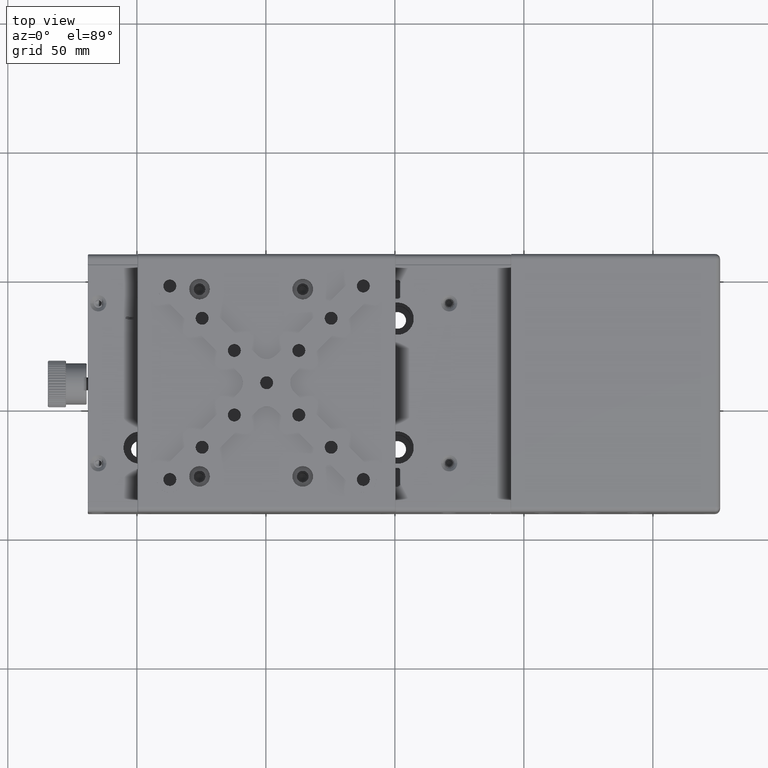
[diagram: clean part render]
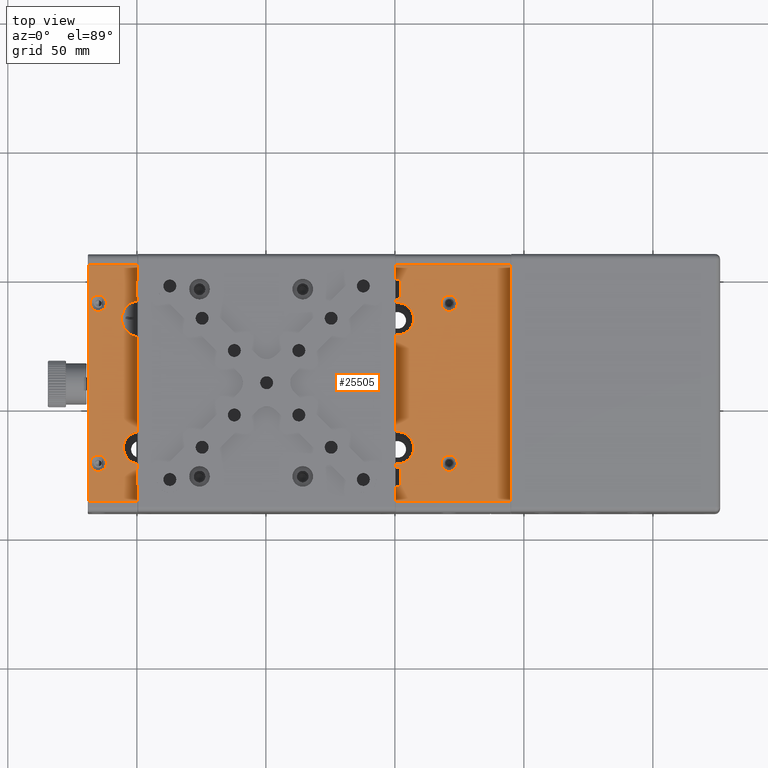
[diagram: same view with one face highlighted and labeled with its STEP entity id]
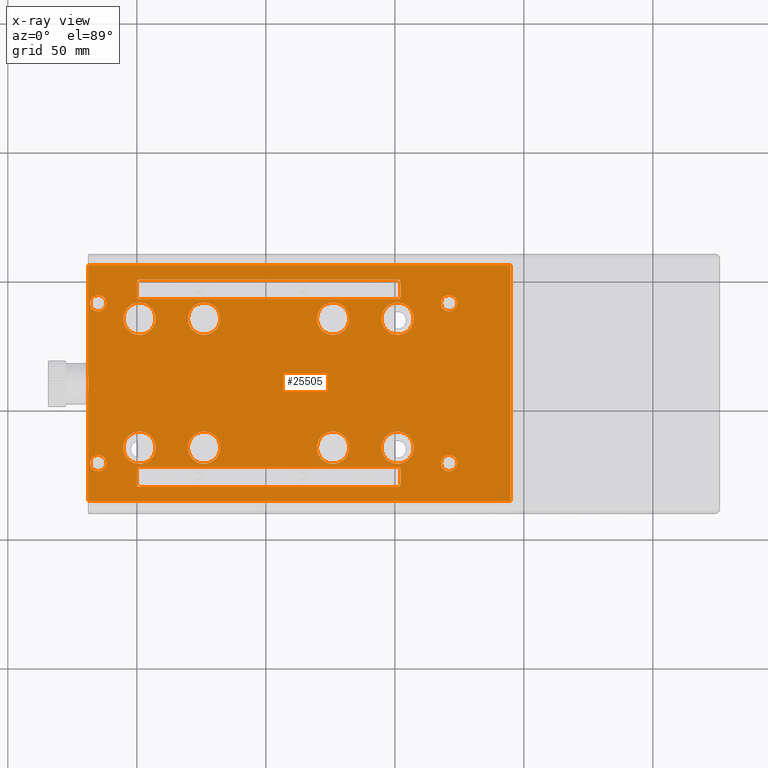
[diagram: x-ray of the same camera — body ghosted, the highlighted face saturated]
A machine part, top view. The second image highlights one B-rep face of the part: STEP entity #25505.
The next image is the same camera in x-ray: the body ghosted, the highlighted face saturated — about 0% of this face is hidden behind the body in this view.
In plain terms, the highlighted planar face has unit normal (0, 0, 1).
Its self-contained STEP definition (entity closure, byte-faithful):
#201 = DIRECTION ( 'NONE',  ( 0.000000000000000000, 0.000000000000000000, -1.000000000000000000 ) ) ;
#372 = DIRECTION ( 'NONE',  ( 1.000000000000000000, 0.000000000000000000, 0.000000000000000000 ) ) ;
#603 = DIRECTION ( 'NONE',  ( 0.000000000000000000, 0.000000000000000000, 1.000000000000000000 ) ) ;
#1005 = CARTESIAN_POINT ( 'NONE',  ( -73.96079120029010312, -15.00575141257545120, 36.50000000000000000 ) ) ;
#1494 = ORIENTED_EDGE ( 'NONE', *, *, #55256, .F. ) ;
#1911 = CARTESIAN_POINT ( 'NONE',  ( -150.1607912002899923, -29.00575141257545297, 36.50000000000000000 ) ) ;
#2404 = EDGE_CURVE ( 'NONE', #35365, #9670, #32947, .T. ) ;
#2948 = CIRCLE ( 'NONE', #56689, 3.149999999999999911 ) ;
#3013 = VERTEX_POINT ( 'NONE', #66327 ) ;
#3133 = DIRECTION ( 'NONE',  ( 0.000000000000000000, 0.000000000000000000, 1.000000000000000000 ) ) ;
#3363 = FACE_BOUND ( 'NONE', #20935, .T. ) ;
#3528 = VERTEX_POINT ( 'NONE', #65880 ) ;
#3534 = ORIENTED_EDGE ( 'NONE', *, *, #41924, .F. ) ;
#3535 = EDGE_CURVE ( 'NONE', #28929, #59703, #60400, .T. ) ;
#3977 = DIRECTION ( 'NONE',  ( 1.000000000000000000, 0.000000000000000000, 0.000000000000000000 ) ) ;
#4519 = ORIENTED_EDGE ( 'NONE', *, *, #27572, .T. ) ;
#4668 = EDGE_CURVE ( 'NONE', #32475, #6495, #54761, .T. ) ;
#4693 = EDGE_CURVE ( 'NONE', #27872, #35365, #6500, .T. ) ;
#4795 = CIRCLE ( 'NONE', #37541, 1.200000000000034373 ) ;
#5108 = CARTESIAN_POINT ( 'NONE',  ( -5.160791200290169911, 55.99424858742450084, 36.50000000000000000 ) ) ;
#5128 = EDGE_CURVE ( 'NONE', #59703, #68340, #56039, .T. ) ;
#5157 = ORIENTED_EDGE ( 'NONE', *, *, #2404, .T. ) ;
#5561 = CARTESIAN_POINT ( 'NONE',  ( -130.2107912002900036, 34.99424858742454347, 36.50000000000000000 ) ) ;
#6196 = DIRECTION ( 'NONE',  ( -1.000000000000000000, 0.000000000000000000, 0.000000000000000000 ) ) ;
#6396 = CARTESIAN_POINT ( 'NONE',  ( -148.9607912002899752, -15.00575141257545120, 36.50000000000000000 ) ) ;
#6495 = VERTEX_POINT ( 'NONE', #43184 ) ;
#6500 = LINE ( 'NONE', #67620, #50128 ) ;
#6969 = VERTEX_POINT ( 'NONE', #20821 ) ;
#7342 = VERTEX_POINT ( 'NONE', #54008 ) ;
#7973 = VERTEX_POINT ( 'NONE', #24901 ) ;
#8049 = EDGE_CURVE ( 'NONE', #32002, #29829, #53815, .T. ) ;
#8247 = DIRECTION ( 'NONE',  ( 0.000000000000000000, 0.000000000000000000, -1.000000000000000000 ) ) ;
#8370 = VERTEX_POINT ( 'NONE', #19680 ) ;
#8612 = AXIS2_PLACEMENT_3D ( 'NONE', #65610, #30884, #14760 ) ;
#8882 = FACE_BOUND ( 'NONE', #45761, .T. ) ;
#8927 = ORIENTED_EDGE ( 'NONE', *, *, #36085, .T. ) ;
#8947 = DIRECTION ( 'NONE',  ( 1.000000000000000000, 0.000000000000000000, 0.000000000000000000 ) ) ;
#9351 = CARTESIAN_POINT ( 'NONE',  ( -48.96079120029010312, 34.99424858742454347, 36.50000000000000000 ) ) ;
#9379 = AXIS2_PLACEMENT_3D ( 'NONE', #63382, #68863, #41040 ) ;
#9438 = CIRCLE ( 'NONE', #18814, 6.250000000000005329 ) ;
#9505 = CARTESIAN_POINT ( 'NONE',  ( -28.96079120029009957, 40.99424858742454347, 36.50000000000000000 ) ) ;
#9670 = VERTEX_POINT ( 'NONE', #41222 ) ;
#9725 = VERTEX_POINT ( 'NONE', #64628 ) ;
#9783 = VERTEX_POINT ( 'NONE', #37883 ) ;
#9951 = FACE_BOUND ( 'NONE', #61414, .T. ) ;
#10058 = DIRECTION ( 'NONE',  ( 0.000000000000000000, 0.000000000000000000, 1.000000000000000000 ) ) ;
#10266 = CARTESIAN_POINT ( 'NONE',  ( -150.1607912002899923, 48.99424858742449373, 36.50000000000000000 ) ) ;
#10318 = AXIS2_PLACEMENT_3D ( 'NONE', #68143, #49952, #62276 ) ;
#10456 = DIRECTION ( 'NONE',  ( 0.000000000000000000, 0.000000000000000000, -1.000000000000000000 ) ) ;
#10772 = EDGE_CURVE ( 'NONE', #66914, #7342, #26291, .T. ) ;
#10789 = VECTOR ( 'NONE', #26957, 1000.000000000000000 ) ;
#11305 = CARTESIAN_POINT ( 'NONE',  ( -47.76079120029010028, 48.99424858742449373, 36.50000000000000000 ) ) ;
#11404 = VERTEX_POINT ( 'NONE', #26145 ) ;
#11510 = CARTESIAN_POINT ( 'NONE',  ( -25.81079120029010099, 40.99424858742454347, 36.50000000000000000 ) ) ;
#11717 = AXIS2_PLACEMENT_3D ( 'NONE', #9505, #47924, #37280 ) ;
#11984 = ORIENTED_EDGE ( 'NONE', *, *, #4693, .T. ) ;
#12014 = ORIENTED_EDGE ( 'NONE', *, *, #39501, .F. ) ;
#12564 = VERTEX_POINT ( 'NONE', #69804 ) ;
#12720 = VECTOR ( 'NONE', #56692, 1000.000000000000000 ) ;
#13152 = LINE ( 'NONE', #46068, #12720 ) ;
#13275 = VERTEX_POINT ( 'NONE', #44288 ) ;
#13311 = CARTESIAN_POINT ( 'NONE',  ( -117.7107912002900036, -15.00575141257545120, 36.50000000000000000 ) ) ;
#13738 = VERTEX_POINT ( 'NONE', #56902 ) ;
#14067 = AXIS2_PLACEMENT_3D ( 'NONE', #50729, #603, #29856 ) ;
#14355 = DIRECTION ( 'NONE',  ( 0.000000000000000000, 0.000000000000000000, 1.000000000000000000 ) ) ;
#14362 = FACE_BOUND ( 'NONE', #38569, .T. ) ;
#14751 = DIRECTION ( 'NONE',  ( -1.000000000000000000, 0.000000000000000000, 0.000000000000000000 ) ) ;
#14760 = DIRECTION ( 'NONE',  ( 1.000000000000000000, 0.000000000000000000, 0.000000000000000000 ) ) ;
#15326 = AXIS2_PLACEMENT_3D ( 'NONE', #34139, #56451, #29019 ) ;
#15403 = LINE ( 'NONE', #21993, #24716 ) ;
#15430 = FACE_BOUND ( 'NONE', #27694, .T. ) ;
#15646 = DIRECTION ( 'NONE',  ( 1.000000000000000000, 0.000000000000000000, 0.000000000000000000 ) ) ;
#15786 = FACE_OUTER_BOUND ( 'NONE', #18335, .T. ) ;
#16118 = DIRECTION ( 'NONE',  ( 0.000000000000000000, 0.000000000000000000, 1.000000000000000000 ) ) ;
#16615 = CARTESIAN_POINT ( 'NONE',  ( -168.7607912002899866, -35.80575141257544658, 36.50000000000000000 ) ) ;
#17018 = EDGE_CURVE ( 'NONE', #32937, #3013, #2948, .T. ) ;
#17698 = ORIENTED_EDGE ( 'NONE', *, *, #63912, .F. ) ;
#17718 = EDGE_CURVE ( 'NONE', #24325, #70727, #47080, .T. ) ;
#17730 = VECTOR ( 'NONE', #46347, 1000.000000000000000 ) ;
#17826 = ORIENTED_EDGE ( 'NONE', *, *, #18955, .F. ) ;
#18335 = EDGE_LOOP ( 'NONE', ( #11984, #5157, #47474, #46944 ) ) ;
#18493 = CIRCLE ( 'NONE', #10318, 6.249999999999998224 ) ;
#18609 = AXIS2_PLACEMENT_3D ( 'NONE', #21191, #36914, #43492 ) ;
#18814 = AXIS2_PLACEMENT_3D ( 'NONE', #66814, #29109, #33854 ) ;
#18955 = EDGE_CURVE ( 'NONE', #7973, #8370, #53437, .T. ) ;
#19248 = ORIENTED_EDGE ( 'NONE', *, *, #57368, .T. ) ;
#19680 = CARTESIAN_POINT ( 'NONE',  ( -67.71079120029010312, 34.99424858742454347, 36.50000000000000000 ) ) ;
#19688 = CARTESIAN_POINT ( 'NONE',  ( -123.9607912002900036, 34.99424858742454347, 36.50000000000000000 ) ) ;
#19792 = VECTOR ( 'NONE', #6196, 1000.000000000000000 ) ;
#19812 = DIRECTION ( 'NONE',  ( 1.000000000000000000, 0.000000000000000000, 0.000000000000000000 ) ) ;
#20321 = DIRECTION ( 'NONE',  ( 0.000000000000000000, 0.000000000000000000, 1.000000000000000000 ) ) ;
#20680 = DIRECTION ( 'NONE',  ( 1.000000000000000000, 0.000000000000000000, 0.000000000000000000 ) ) ;
#20777 = DIRECTION ( 'NONE',  ( 1.000000000000000000, 0.000000000000000000, 0.000000000000000000 ) ) ;
#20821 = CARTESIAN_POINT ( 'NONE',  ( -148.9607912002899752, -22.60575141257539755, 36.50000000000000000 ) ) ;
#20929 = FACE_BOUND ( 'NONE', #23445, .T. ) ;
#20935 = EDGE_LOOP ( 'NONE', ( #71804, #62931 ) ) ;
#21191 = CARTESIAN_POINT ( 'NONE',  ( -48.96079120029010312, 34.99424858742454347, 36.50000000000000000 ) ) ;
#21304 = FACE_BOUND ( 'NONE', #40620, .T. ) ;
#21344 = LINE ( 'NONE', #49121, #27910 ) ;
#21659 = PLANE ( 'NONE',  #55060 ) ;
#21993 = CARTESIAN_POINT ( 'NONE',  ( -168.7607912002899866, -36.00575141257544942, 36.50000000000000000 ) ) ;
#22111 = EDGE_CURVE ( 'NONE', #13738, #11404, #63281, .T. ) ;
#22137 = EDGE_CURVE ( 'NONE', #69060, #40625, #13152, .T. ) ;
#22143 = AXIS2_PLACEMENT_3D ( 'NONE', #31975, #42931, #8947 ) ;
#22272 = VERTEX_POINT ( 'NONE', #25230 ) ;
#22687 = CARTESIAN_POINT ( 'NONE',  ( -80.21079120029010312, -15.00575141257545120, 36.50000000000000000 ) ) ;
#22784 = EDGE_CURVE ( 'NONE', #68340, #32002, #59485, .T. ) ;
#22837 = CARTESIAN_POINT ( 'NONE',  ( -48.96079120029010312, -22.60575141257539755, 36.50000000000000000 ) ) ;
#23010 = EDGE_CURVE ( 'NONE', #25739, #23578, #53698, .T. ) ;
#23420 = CARTESIAN_POINT ( 'NONE',  ( -42.71079120029010312, -15.00575141257545120, 36.50000000000000000 ) ) ;
#23445 = EDGE_LOOP ( 'NONE', ( #24898, #17826 ) ) ;
#23483 = EDGE_CURVE ( 'NONE', #70937, #57108, #54957, .T. ) ;
#23578 = VERTEX_POINT ( 'NONE', #29707 ) ;
#24183 = EDGE_CURVE ( 'NONE', #3528, #69725, #44589, .T. ) ;
#24325 = VERTEX_POINT ( 'NONE', #35936 ) ;
#24469 = EDGE_CURVE ( 'NONE', #69725, #3528, #59838, .T. ) ;
#24716 = VECTOR ( 'NONE', #37338, 1000.000000000000000 ) ;
#24873 = DIRECTION ( 'NONE',  ( 0.000000000000000000, 0.000000000000000000, -1.000000000000000000 ) ) ;
#24898 = ORIENTED_EDGE ( 'NONE', *, *, #61783, .F. ) ;
#24901 = CARTESIAN_POINT ( 'NONE',  ( -80.21079120029010312, 34.99424858742454347, 36.50000000000000000 ) ) ;
#25230 = CARTESIAN_POINT ( 'NONE',  ( -168.7607912002899866, 55.79424858742449800, 36.50000000000000000 ) ) ;
#25505 = ADVANCED_FACE ( 'NONE', ( #26437, #48718, #60067, #20929, #26778, #9951, #49078, #3363, #8882, #43224, #15430, #14362, #21304, #71768, #15786 ), #21659, .T. ) ;
#25670 = DIRECTION ( 'NONE',  ( 0.000000000000000000, 1.000000000000000000, 0.000000000000000000 ) ) ;
#25739 = VERTEX_POINT ( 'NONE', #25993 ) ;
#25979 = DIRECTION ( 'NONE',  ( 0.000000000000000000, 0.000000000000000000, -1.000000000000000000 ) ) ;
#25993 = CARTESIAN_POINT ( 'NONE',  ( -32.11079120029010170, -21.00575141257544942, 36.50000000000000000 ) ) ;
#26145 = CARTESIAN_POINT ( 'NONE',  ( -148.9607912002899752, -30.20575141257550200, 36.50000000000000000 ) ) ;
#26189 = EDGE_LOOP ( 'NONE', ( #67273, #61503 ) ) ;
#26291 = CIRCLE ( 'NONE', #46110, 6.250000000000005329 ) ;
#26437 = FACE_BOUND ( 'NONE', #49808, .T. ) ;
#26621 = DIRECTION ( 'NONE',  ( 0.000000000000000000, 0.000000000000000000, 1.000000000000000000 ) ) ;
#26675 = CARTESIAN_POINT ( 'NONE',  ( -48.96079120029010312, 48.99424858742449373, 36.50000000000000000 ) ) ;
#26778 = FACE_BOUND ( 'NONE', #37364, .T. ) ;
#26931 = ORIENTED_EDGE ( 'NONE', *, *, #29086, .F. ) ;
#26957 = DIRECTION ( 'NONE',  ( -1.000000000000000000, 3.401418580346679586E-17, 0.000000000000000000 ) ) ;
#27007 = CARTESIAN_POINT ( 'NONE',  ( -123.9607912002900036, -15.00575141257545120, 36.50000000000000000 ) ) ;
#27008 = DIRECTION ( 'NONE',  ( 1.000000000000000000, 0.000000000000000000, 0.000000000000000000 ) ) ;
#27055 = ORIENTED_EDGE ( 'NONE', *, *, #34217, .F. ) ;
#27482 = EDGE_CURVE ( 'NONE', #6969, #27789, #55906, .T. ) ;
#27516 = CIRCLE ( 'NONE', #33345, 6.250000000000005329 ) ;
#27572 = EDGE_CURVE ( 'NONE', #27789, #24325, #60673, .T. ) ;
#27694 = EDGE_LOOP ( 'NONE', ( #34953, #30929 ) ) ;
#27789 = VERTEX_POINT ( 'NONE', #22837 ) ;
#27872 = VERTEX_POINT ( 'NONE', #16615 ) ;
#27910 = VECTOR ( 'NONE', #14751, 1000.000000000000000 ) ;
#28490 = EDGE_CURVE ( 'NONE', #3013, #32937, #49118, .T. ) ;
#28678 = ORIENTED_EDGE ( 'NONE', *, *, #3535, .T. ) ;
#28866 = ORIENTED_EDGE ( 'NONE', *, *, #28490, .F. ) ;
#28929 = VERTEX_POINT ( 'NONE', #58469 ) ;
#29019 = DIRECTION ( 'NONE',  ( 1.000000000000000000, 0.000000000000000000, 0.000000000000000000 ) ) ;
#29086 = EDGE_CURVE ( 'NONE', #9783, #43953, #65579, .T. ) ;
#29109 = DIRECTION ( 'NONE',  ( 0.000000000000000000, 0.000000000000000000, 1.000000000000000000 ) ) ;
#29136 = AXIS2_PLACEMENT_3D ( 'NONE', #39079, #8247, #29839 ) ;
#29707 = CARTESIAN_POINT ( 'NONE',  ( -25.81079120029010099, -21.00575141257544942, 36.50000000000000000 ) ) ;
#29829 = VERTEX_POINT ( 'NONE', #11305 ) ;
#29839 = DIRECTION ( 'NONE',  ( 1.000000000000000000, 0.000000000000000000, 0.000000000000000000 ) ) ;
#29856 = DIRECTION ( 'NONE',  ( 1.000000000000000000, 0.000000000000000000, 0.000000000000000000 ) ) ;
#30512 = DIRECTION ( 'NONE',  ( 0.000000000000000000, 0.000000000000000000, 1.000000000000000000 ) ) ;
#30649 = CIRCLE ( 'NONE', #58691, 3.149999999999986144 ) ;
#30805 = CIRCLE ( 'NONE', #8612, 1.200000000000034373 ) ;
#30874 = DIRECTION ( 'NONE',  ( 1.000000000000000000, 0.000000000000000000, 0.000000000000000000 ) ) ;
#30884 = DIRECTION ( 'NONE',  ( 0.000000000000000000, 0.000000000000000000, -1.000000000000000000 ) ) ;
#30929 = ORIENTED_EDGE ( 'NONE', *, *, #62212, .F. ) ;
#30930 = VERTEX_POINT ( 'NONE', #61543 ) ;
#31055 = CARTESIAN_POINT ( 'NONE',  ( -148.9607912002899752, -23.80575141257545013, 36.50000000000000000 ) ) ;
#31147 = DIRECTION ( 'NONE',  ( 0.000000000000000000, 0.000000000000000000, -1.000000000000000000 ) ) ;
#31388 = DIRECTION ( 'NONE',  ( 0.000000000000000000, 0.000000000000000000, -1.000000000000000000 ) ) ;
#31975 = CARTESIAN_POINT ( 'NONE',  ( -48.96079120029010312, -15.00575141257545120, 36.50000000000000000 ) ) ;
#32002 = VERTEX_POINT ( 'NONE', #40571 ) ;
#32221 = EDGE_CURVE ( 'NONE', #40625, #6969, #59578, .T. ) ;
#32475 = VERTEX_POINT ( 'NONE', #51116 ) ;
#32937 = VERTEX_POINT ( 'NONE', #11510 ) ;
#32947 = LINE ( 'NONE', #5108, #63857 ) ;
#33000 = EDGE_LOOP ( 'NONE', ( #65639, #47473 ) ) ;
#33156 = CARTESIAN_POINT ( 'NONE',  ( -48.96079120029010312, 42.59424858742450226, 36.50000000000000000 ) ) ;
#33345 = AXIS2_PLACEMENT_3D ( 'NONE', #27007, #48928, #15646 ) ;
#33470 = ORIENTED_EDGE ( 'NONE', *, *, #44484, .F. ) ;
#33609 = CARTESIAN_POINT ( 'NONE',  ( -48.96079120029010312, -22.60575141257539755, 36.50000000000000000 ) ) ;
#33854 = DIRECTION ( 'NONE',  ( 1.000000000000000000, 0.000000000000000000, 0.000000000000000000 ) ) ;
#34032 = EDGE_CURVE ( 'NONE', #47893, #36188, #71267, .T. ) ;
#34139 = CARTESIAN_POINT ( 'NONE',  ( -148.9607912002899752, 34.99424858742454347, 36.50000000000000000 ) ) ;
#34217 = EDGE_CURVE ( 'NONE', #61697, #12564, #52565, .T. ) ;
#34664 = CARTESIAN_POINT ( 'NONE',  ( -73.96079120029010312, 34.99424858742454347, 36.50000000000000000 ) ) ;
#34818 = EDGE_CURVE ( 'NONE', #22272, #27872, #15403, .T. ) ;
#34953 = ORIENTED_EDGE ( 'NONE', *, *, #23483, .F. ) ;
#35023 = AXIS2_PLACEMENT_3D ( 'NONE', #31055, #24873, #54071 ) ;
#35167 = CARTESIAN_POINT ( 'NONE',  ( -117.7107912002900036, 34.99424858742454347, 36.50000000000000000 ) ) ;
#35365 = VERTEX_POINT ( 'NONE', #45110 ) ;
#35454 = CARTESIAN_POINT ( 'NONE',  ( -148.9607912002899752, -30.20575141257550200, 36.50000000000000000 ) ) ;
#35936 = CARTESIAN_POINT ( 'NONE',  ( -47.76079120029010028, -23.80575141257545013, 36.50000000000000000 ) ) ;
#36085 = EDGE_CURVE ( 'NONE', #36188, #52801, #48529, .T. ) ;
#36188 = VERTEX_POINT ( 'NONE', #33156 ) ;
#36248 = CIRCLE ( 'NONE', #14067, 6.250000000000005329 ) ;
#36806 = DIRECTION ( 'NONE',  ( 0.000000000000000000, -1.000000000000000000, 0.000000000000000000 ) ) ;
#36914 = DIRECTION ( 'NONE',  ( 0.000000000000000000, 0.000000000000000000, 1.000000000000000000 ) ) ;
#37000 = VERTEX_POINT ( 'NONE', #67716 ) ;
#37280 = DIRECTION ( 'NONE',  ( 1.000000000000000000, 0.000000000000000000, 0.000000000000000000 ) ) ;
#37338 = DIRECTION ( 'NONE',  ( 1.224646799147353947E-16, -1.000000000000000000, 0.000000000000000000 ) ) ;
#37364 = EDGE_LOOP ( 'NONE', ( #64743, #55892 ) ) ;
#37404 = AXIS2_PLACEMENT_3D ( 'NONE', #6396, #41146, #56886 ) ;
#37541 = AXIS2_PLACEMENT_3D ( 'NONE', #46884, #31147, #19812 ) ;
#37867 = DIRECTION ( 'NONE',  ( 1.000000000000000000, 0.000000000000000000, 0.000000000000000000 ) ) ;
#37883 = CARTESIAN_POINT ( 'NONE',  ( -168.1107912002899809, 40.99424858742454347, 36.50000000000000000 ) ) ;
#38569 = EDGE_LOOP ( 'NONE', ( #17698, #48701 ) ) ;
#38709 = DIRECTION ( 'NONE',  ( 1.000000000000000000, 0.000000000000000000, 0.000000000000000000 ) ) ;
#38787 = CARTESIAN_POINT ( 'NONE',  ( -73.96079120029010312, 34.99424858742454347, 36.50000000000000000 ) ) ;
#39079 = CARTESIAN_POINT ( 'NONE',  ( -48.96079120029010312, -23.80575141257545013, 36.50000000000000000 ) ) ;
#39431 = AXIS2_PLACEMENT_3D ( 'NONE', #38787, #62574, #372 ) ;
#39469 = CARTESIAN_POINT ( 'NONE',  ( -148.9607912002899752, 42.59424858742454489, 36.50000000000000000 ) ) ;
#39501 = EDGE_CURVE ( 'NONE', #37000, #61271, #18493, .T. ) ;
#39530 = ORIENTED_EDGE ( 'NONE', *, *, #17018, .F. ) ;
#39699 = AXIS2_PLACEMENT_3D ( 'NONE', #49982, #10456, #60972 ) ;
#39774 = CARTESIAN_POINT ( 'NONE',  ( -155.2107912002900036, -15.00575141257545120, 36.50000000000000000 ) ) ;
#40437 = VECTOR ( 'NONE', #36806, 1000.000000000000000 ) ;
#40571 = CARTESIAN_POINT ( 'NONE',  ( -48.96079120029010312, 50.19424858742459605, 36.50000000000000000 ) ) ;
#40620 = EDGE_LOOP ( 'NONE', ( #53849, #19248, #54586, #70685, #60703, #4519, #55448, #42996 ) ) ;
#40625 = VERTEX_POINT ( 'NONE', #43388 ) ;
#40841 = CARTESIAN_POINT ( 'NONE',  ( -47.76079120029010028, 43.79424858742454774, 36.50000000000000000 ) ) ;
#40991 = EDGE_CURVE ( 'NONE', #61271, #37000, #53656, .T. ) ;
#41040 = DIRECTION ( 'NONE',  ( 1.000000000000000000, 0.000000000000000000, 0.000000000000000000 ) ) ;
#41146 = DIRECTION ( 'NONE',  ( 0.000000000000000000, 0.000000000000000000, 1.000000000000000000 ) ) ;
#41222 = CARTESIAN_POINT ( 'NONE',  ( -5.160791200290169911, 55.79424858742449800, 36.50000000000000000 ) ) ;
#41597 = VECTOR ( 'NONE', #25670, 1000.000000000000000 ) ;
#41924 = EDGE_CURVE ( 'NONE', #7342, #66914, #9438, .T. ) ;
#41973 = DIRECTION ( 'NONE',  ( 1.000000000000000000, 0.000000000000000000, 0.000000000000000000 ) ) ;
#42890 = ORIENTED_EDGE ( 'NONE', *, *, #10772, .F. ) ;
#42931 = DIRECTION ( 'NONE',  ( 0.000000000000000000, 0.000000000000000000, 1.000000000000000000 ) ) ;
#42996 = ORIENTED_EDGE ( 'NONE', *, *, #47842, .T. ) ;
#43184 = CARTESIAN_POINT ( 'NONE',  ( -55.21079120029009601, 34.99424858742454347, 36.50000000000000000 ) ) ;
#43224 = FACE_BOUND ( 'NONE', #26189, .T. ) ;
#43238 = CIRCLE ( 'NONE', #72448, 1.200000000000006617 ) ;
#43376 = CARTESIAN_POINT ( 'NONE',  ( -48.96079120029010312, 50.19424858742459605, 36.50000000000000000 ) ) ;
#43388 = CARTESIAN_POINT ( 'NONE',  ( -150.1607912002899923, -23.80575141257545013, 36.50000000000000000 ) ) ;
#43492 = DIRECTION ( 'NONE',  ( 1.000000000000000000, 0.000000000000000000, 0.000000000000000000 ) ) ;
#43596 = CARTESIAN_POINT ( 'NONE',  ( -168.9607912002899752, 55.99424858742450084, 36.50000000000000000 ) ) ;
#43616 = CIRCLE ( 'NONE', #63538, 6.250000000000005329 ) ;
#43953 = VERTEX_POINT ( 'NONE', #54862 ) ;
#44107 = DIRECTION ( 'NONE',  ( 1.000000000000000000, 0.000000000000000000, 0.000000000000000000 ) ) ;
#44288 = CARTESIAN_POINT ( 'NONE',  ( -130.2107912002900036, -15.00575141257545120, 36.50000000000000000 ) ) ;
#44484 = EDGE_CURVE ( 'NONE', #43953, #9783, #30649, .T. ) ;
#44536 = AXIS2_PLACEMENT_3D ( 'NONE', #66464, #26621, #65754 ) ;
#44589 = CIRCLE ( 'NONE', #15326, 6.250000000000005329 ) ;
#44860 = ORIENTED_EDGE ( 'NONE', *, *, #54902, .T. ) ;
#44950 = DIRECTION ( 'NONE',  ( 1.000000000000000000, 0.000000000000000000, 0.000000000000000000 ) ) ;
#44991 = DIRECTION ( 'NONE',  ( 0.000000000000000000, 1.000000000000000000, 0.000000000000000000 ) ) ;
#45110 = CARTESIAN_POINT ( 'NONE',  ( -5.160791200290169911, -35.80575141257544658, 36.50000000000000000 ) ) ;
#45761 = EDGE_LOOP ( 'NONE', ( #1494, #27055 ) ) ;
#46068 = CARTESIAN_POINT ( 'NONE',  ( -150.1607912002899923, -23.80575141257545013, 36.50000000000000000 ) ) ;
#46110 = AXIS2_PLACEMENT_3D ( 'NONE', #1005, #16118, #55257 ) ;
#46172 = CIRCLE ( 'NONE', #61389, 6.250000000000005329 ) ;
#46306 = CIRCLE ( 'NONE', #50953, 3.149999999999986144 ) ;
#46347 = DIRECTION ( 'NONE',  ( 0.000000000000000000, -1.000000000000000000, 0.000000000000000000 ) ) ;
#46812 = AXIS2_PLACEMENT_3D ( 'NONE', #71529, #10058, #55394 ) ;
#46884 = CARTESIAN_POINT ( 'NONE',  ( -148.9607912002899752, -29.00575141257545297, 36.50000000000000000 ) ) ;
#46944 = ORIENTED_EDGE ( 'NONE', *, *, #34818, .T. ) ;
#47080 = LINE ( 'NONE', #70121, #40437 ) ;
#47473 = ORIENTED_EDGE ( 'NONE', *, *, #53420, .F. ) ;
#47474 = ORIENTED_EDGE ( 'NONE', *, *, #53818, .T. ) ;
#47842 = EDGE_CURVE ( 'NONE', #70727, #13738, #30805, .T. ) ;
#47893 = VERTEX_POINT ( 'NONE', #53900 ) ;
#47924 = DIRECTION ( 'NONE',  ( 0.000000000000000000, 0.000000000000000000, 1.000000000000000000 ) ) ;
#48529 = LINE ( 'NONE', #70862, #10789 ) ;
#48598 = CARTESIAN_POINT ( 'NONE',  ( -148.9607912002899752, 50.19424858742459605, 36.50000000000000000 ) ) ;
#48685 = AXIS2_PLACEMENT_3D ( 'NONE', #58385, #3133, #63526 ) ;
#48701 = ORIENTED_EDGE ( 'NONE', *, *, #71704, .F. ) ;
#48718 = FACE_BOUND ( 'NONE', #67294, .T. ) ;
#48881 = AXIS2_PLACEMENT_3D ( 'NONE', #9351, #53984, #37867 ) ;
#48928 = DIRECTION ( 'NONE',  ( 0.000000000000000000, 0.000000000000000000, 1.000000000000000000 ) ) ;
#49057 = AXIS2_PLACEMENT_3D ( 'NONE', #67518, #61302, #56144 ) ;
#49078 = FACE_BOUND ( 'NONE', #63432, .T. ) ;
#49118 = CIRCLE ( 'NONE', #11717, 3.149999999999999911 ) ;
#49121 = CARTESIAN_POINT ( 'NONE',  ( -168.9607912002899752, 55.79424858742449800, 36.50000000000000000 ) ) ;
#49808 = EDGE_LOOP ( 'NONE', ( #70523, #12014 ) ) ;
#49952 = DIRECTION ( 'NONE',  ( 0.000000000000000000, 0.000000000000000000, 1.000000000000000000 ) ) ;
#49982 = CARTESIAN_POINT ( 'NONE',  ( -148.9607912002899752, 48.99424858742449373, 36.50000000000000000 ) ) ;
#50055 = EDGE_CURVE ( 'NONE', #30930, #9725, #46306, .T. ) ;
#50061 = DIRECTION ( 'NONE',  ( 1.000000000000000000, 0.000000000000000000, 0.000000000000000000 ) ) ;
#50128 = VECTOR ( 'NONE', #50061, 1000.000000000000000 ) ;
#50729 = CARTESIAN_POINT ( 'NONE',  ( -148.9607912002899752, -15.00575141257545120, 36.50000000000000000 ) ) ;
#50953 = AXIS2_PLACEMENT_3D ( 'NONE', #72025, #67265, #38709 ) ;
#51116 = CARTESIAN_POINT ( 'NONE',  ( -42.71079120029010312, 34.99424858742454347, 36.50000000000000000 ) ) ;
#52140 = EDGE_CURVE ( 'NONE', #9725, #30930, #70948, .T. ) ;
#52205 = DIRECTION ( 'NONE',  ( 1.000000000000000000, 0.000000000000000000, 0.000000000000000000 ) ) ;
#52565 = CIRCLE ( 'NONE', #37404, 6.250000000000005329 ) ;
#52801 = VERTEX_POINT ( 'NONE', #39469 ) ;
#53172 = EDGE_LOOP ( 'NONE', ( #55358, #68540, #8927, #44860, #28678, #68887, #54758, #59196 ) ) ;
#53420 = EDGE_CURVE ( 'NONE', #6495, #32475, #58206, .T. ) ;
#53437 = CIRCLE ( 'NONE', #39431, 6.250000000000005329 ) ;
#53488 = DIRECTION ( 'NONE',  ( 1.000000000000000000, 0.000000000000000000, 0.000000000000000000 ) ) ;
#53656 = CIRCLE ( 'NONE', #22143, 6.249999999999998224 ) ;
#53698 = CIRCLE ( 'NONE', #49057, 3.149999999999999911 ) ;
#53815 = CIRCLE ( 'NONE', #56119, 1.199999999999999734 ) ;
#53818 = EDGE_CURVE ( 'NONE', #9670, #22272, #21344, .T. ) ;
#53849 = ORIENTED_EDGE ( 'NONE', *, *, #22111, .T. ) ;
#53900 = CARTESIAN_POINT ( 'NONE',  ( -47.76079120029010028, 43.79424858742454774, 36.50000000000000000 ) ) ;
#53984 = DIRECTION ( 'NONE',  ( 0.000000000000000000, 0.000000000000000000, 1.000000000000000000 ) ) ;
#54008 = CARTESIAN_POINT ( 'NONE',  ( -67.71079120029010312, -15.00575141257545120, 36.50000000000000000 ) ) ;
#54071 = DIRECTION ( 'NONE',  ( 1.000000000000000000, 0.000000000000000000, 0.000000000000000000 ) ) ;
#54586 = ORIENTED_EDGE ( 'NONE', *, *, #22137, .T. ) ;
#54758 = ORIENTED_EDGE ( 'NONE', *, *, #22784, .T. ) ;
#54761 = CIRCLE ( 'NONE', #18609, 6.249999999999998224 ) ;
#54862 = CARTESIAN_POINT ( 'NONE',  ( -161.8107912002899980, 40.99424858742454347, 36.50000000000000000 ) ) ;
#54902 = EDGE_CURVE ( 'NONE', #52801, #28929, #43238, .T. ) ;
#54957 = CIRCLE ( 'NONE', #9379, 6.250000000000005329 ) ;
#55060 = AXIS2_PLACEMENT_3D ( 'NONE', #43596, #65914, #53488 ) ;
#55256 = EDGE_CURVE ( 'NONE', #12564, #61697, #36248, .T. ) ;
#55257 = DIRECTION ( 'NONE',  ( 1.000000000000000000, 0.000000000000000000, 0.000000000000000000 ) ) ;
#55358 = ORIENTED_EDGE ( 'NONE', *, *, #60539, .T. ) ;
#55394 = DIRECTION ( 'NONE',  ( 1.000000000000000000, 0.000000000000000000, 0.000000000000000000 ) ) ;
#55448 = ORIENTED_EDGE ( 'NONE', *, *, #17718, .T. ) ;
#55505 = DIRECTION ( 'NONE',  ( 0.000000000000000000, 0.000000000000000000, 1.000000000000000000 ) ) ;
#55554 = EDGE_CURVE ( 'NONE', #23578, #25739, #66651, .T. ) ;
#55892 = ORIENTED_EDGE ( 'NONE', *, *, #52140, .F. ) ;
#55906 = LINE ( 'NONE', #33609, #64238 ) ;
#56039 = CIRCLE ( 'NONE', #39699, 1.200000000000006617 ) ;
#56119 = AXIS2_PLACEMENT_3D ( 'NONE', #26675, #25979, #3977 ) ;
#56144 = DIRECTION ( 'NONE',  ( 1.000000000000000000, 0.000000000000000000, 0.000000000000000000 ) ) ;
#56150 = CARTESIAN_POINT ( 'NONE',  ( -48.96079120029010312, 43.79424858742454774, 36.50000000000000000 ) ) ;
#56451 = DIRECTION ( 'NONE',  ( 0.000000000000000000, 0.000000000000000000, 1.000000000000000000 ) ) ;
#56689 = AXIS2_PLACEMENT_3D ( 'NONE', #63822, #30512, #30874 ) ;
#56692 = DIRECTION ( 'NONE',  ( 0.000000000000000000, 1.000000000000000000, 0.000000000000000000 ) ) ;
#56886 = DIRECTION ( 'NONE',  ( 1.000000000000000000, 0.000000000000000000, 0.000000000000000000 ) ) ;
#56902 = CARTESIAN_POINT ( 'NONE',  ( -48.96079120029010312, -30.20575141257550200, 36.50000000000000000 ) ) ;
#57108 = VERTEX_POINT ( 'NONE', #5561 ) ;
#57126 = CARTESIAN_POINT ( 'NONE',  ( -150.1607912002899923, 48.99424858742449373, 36.50000000000000000 ) ) ;
#57368 = EDGE_CURVE ( 'NONE', #11404, #69060, #4795, .T. ) ;
#57710 = DIRECTION ( 'NONE',  ( 0.000000000000000000, 0.000000000000000000, 1.000000000000000000 ) ) ;
#58206 = CIRCLE ( 'NONE', #48881, 6.249999999999998224 ) ;
#58385 = CARTESIAN_POINT ( 'NONE',  ( -164.9607912002900036, -21.00575141257544942, 36.50000000000000000 ) ) ;
#58469 = CARTESIAN_POINT ( 'NONE',  ( -150.1607912002899923, 43.79424858742454774, 36.50000000000000000 ) ) ;
#58691 = AXIS2_PLACEMENT_3D ( 'NONE', #66490, #55505, #27008 ) ;
#58982 = DIRECTION ( 'NONE',  ( 1.000000000000000000, 0.000000000000000000, 0.000000000000000000 ) ) ;
#59196 = ORIENTED_EDGE ( 'NONE', *, *, #8049, .T. ) ;
#59485 = LINE ( 'NONE', #43376, #63021 ) ;
#59578 = CIRCLE ( 'NONE', #35023, 1.200000000000034373 ) ;
#59703 = VERTEX_POINT ( 'NONE', #57126 ) ;
#59733 = CARTESIAN_POINT ( 'NONE',  ( -155.2107912002900036, 34.99424858742454347, 36.50000000000000000 ) ) ;
#59838 = CIRCLE ( 'NONE', #60999, 6.250000000000005329 ) ;
#59976 = CIRCLE ( 'NONE', #63491, 6.250000000000005329 ) ;
#60067 = FACE_BOUND ( 'NONE', #33000, .T. ) ;
#60400 = LINE ( 'NONE', #10266, #41597 ) ;
#60539 = EDGE_CURVE ( 'NONE', #29829, #47893, #62112, .T. ) ;
#60570 = DIRECTION ( 'NONE',  ( 1.000000000000000000, -1.700709290173339793E-17, 0.000000000000000000 ) ) ;
#60673 = CIRCLE ( 'NONE', #29136, 1.200000000000034373 ) ;
#60703 = ORIENTED_EDGE ( 'NONE', *, *, #27482, .T. ) ;
#60972 = DIRECTION ( 'NONE',  ( 1.000000000000000000, 0.000000000000000000, 0.000000000000000000 ) ) ;
#60999 = AXIS2_PLACEMENT_3D ( 'NONE', #69969, #14355, #58982 ) ;
#61271 = VERTEX_POINT ( 'NONE', #23420 ) ;
#61302 = DIRECTION ( 'NONE',  ( 0.000000000000000000, 0.000000000000000000, 1.000000000000000000 ) ) ;
#61389 = AXIS2_PLACEMENT_3D ( 'NONE', #70443, #20321, #20680 ) ;
#61414 = EDGE_LOOP ( 'NONE', ( #33470, #26931 ) ) ;
#61503 = ORIENTED_EDGE ( 'NONE', *, *, #24469, .F. ) ;
#61543 = CARTESIAN_POINT ( 'NONE',  ( -161.8107912002899980, -21.00575141257544942, 36.50000000000000000 ) ) ;
#61697 = VERTEX_POINT ( 'NONE', #39774 ) ;
#61783 = EDGE_CURVE ( 'NONE', #8370, #7973, #59976, .T. ) ;
#62112 = LINE ( 'NONE', #40841, #17730 ) ;
#62212 = EDGE_CURVE ( 'NONE', #57108, #70937, #43616, .T. ) ;
#62276 = DIRECTION ( 'NONE',  ( 1.000000000000000000, 0.000000000000000000, 0.000000000000000000 ) ) ;
#62574 = DIRECTION ( 'NONE',  ( 0.000000000000000000, 0.000000000000000000, 1.000000000000000000 ) ) ;
#62931 = ORIENTED_EDGE ( 'NONE', *, *, #23010, .F. ) ;
#63021 = VECTOR ( 'NONE', #60570, 1000.000000000000000 ) ;
#63281 = LINE ( 'NONE', #35454, #19792 ) ;
#63382 = CARTESIAN_POINT ( 'NONE',  ( -123.9607912002900036, 34.99424858742454347, 36.50000000000000000 ) ) ;
#63432 = EDGE_LOOP ( 'NONE', ( #39530, #28866 ) ) ;
#63491 = AXIS2_PLACEMENT_3D ( 'NONE', #34664, #57710, #52205 ) ;
#63526 = DIRECTION ( 'NONE',  ( 1.000000000000000000, 0.000000000000000000, 0.000000000000000000 ) ) ;
#63538 = AXIS2_PLACEMENT_3D ( 'NONE', #19688, #65738, #41973 ) ;
#63822 = CARTESIAN_POINT ( 'NONE',  ( -28.96079120029009957, 40.99424858742454347, 36.50000000000000000 ) ) ;
#63857 = VECTOR ( 'NONE', #44991, 1000.000000000000000 ) ;
#63912 = EDGE_CURVE ( 'NONE', #65460, #13275, #46172, .T. ) ;
#64238 = VECTOR ( 'NONE', #44950, 1000.000000000000000 ) ;
#64628 = CARTESIAN_POINT ( 'NONE',  ( -168.1107912002899809, -21.00575141257544942, 36.50000000000000000 ) ) ;
#64743 = ORIENTED_EDGE ( 'NONE', *, *, #50055, .F. ) ;
#65378 = CARTESIAN_POINT ( 'NONE',  ( -148.9607912002899752, 43.79424858742454774, 36.50000000000000000 ) ) ;
#65406 = AXIS2_PLACEMENT_3D ( 'NONE', #56150, #201, #44107 ) ;
#65460 = VERTEX_POINT ( 'NONE', #13311 ) ;
#65579 = CIRCLE ( 'NONE', #44536, 3.149999999999986144 ) ;
#65610 = CARTESIAN_POINT ( 'NONE',  ( -48.96079120029010312, -29.00575141257545297, 36.50000000000000000 ) ) ;
#65639 = ORIENTED_EDGE ( 'NONE', *, *, #4668, .F. ) ;
#65738 = DIRECTION ( 'NONE',  ( 0.000000000000000000, 0.000000000000000000, 1.000000000000000000 ) ) ;
#65754 = DIRECTION ( 'NONE',  ( 1.000000000000000000, 0.000000000000000000, 0.000000000000000000 ) ) ;
#65880 = CARTESIAN_POINT ( 'NONE',  ( -142.7107912002899752, 34.99424858742454347, 36.50000000000000000 ) ) ;
#65914 = DIRECTION ( 'NONE',  ( 0.000000000000000000, 0.000000000000000000, 1.000000000000000000 ) ) ;
#66327 = CARTESIAN_POINT ( 'NONE',  ( -32.11079120029010170, 40.99424858742454347, 36.50000000000000000 ) ) ;
#66464 = CARTESIAN_POINT ( 'NONE',  ( -164.9607912002900036, 40.99424858742454347, 36.50000000000000000 ) ) ;
#66490 = CARTESIAN_POINT ( 'NONE',  ( -164.9607912002900036, 40.99424858742454347, 36.50000000000000000 ) ) ;
#66651 = CIRCLE ( 'NONE', #46812, 3.149999999999999911 ) ;
#66814 = CARTESIAN_POINT ( 'NONE',  ( -73.96079120029010312, -15.00575141257545120, 36.50000000000000000 ) ) ;
#66914 = VERTEX_POINT ( 'NONE', #22687 ) ;
#67265 = DIRECTION ( 'NONE',  ( 0.000000000000000000, 0.000000000000000000, 1.000000000000000000 ) ) ;
#67273 = ORIENTED_EDGE ( 'NONE', *, *, #24183, .F. ) ;
#67294 = EDGE_LOOP ( 'NONE', ( #3534, #42890 ) ) ;
#67518 = CARTESIAN_POINT ( 'NONE',  ( -28.96079120029009957, -21.00575141257544942, 36.50000000000000000 ) ) ;
#67620 = CARTESIAN_POINT ( 'NONE',  ( -4.960791200290140424, -35.80575141257544658, 36.50000000000000000 ) ) ;
#67716 = CARTESIAN_POINT ( 'NONE',  ( -55.21079120029009601, -15.00575141257545120, 36.50000000000000000 ) ) ;
#68143 = CARTESIAN_POINT ( 'NONE',  ( -48.96079120029010312, -15.00575141257545120, 36.50000000000000000 ) ) ;
#68340 = VERTEX_POINT ( 'NONE', #48598 ) ;
#68540 = ORIENTED_EDGE ( 'NONE', *, *, #34032, .T. ) ;
#68863 = DIRECTION ( 'NONE',  ( 0.000000000000000000, 0.000000000000000000, 1.000000000000000000 ) ) ;
#68887 = ORIENTED_EDGE ( 'NONE', *, *, #5128, .T. ) ;
#69060 = VERTEX_POINT ( 'NONE', #1911 ) ;
#69302 = CARTESIAN_POINT ( 'NONE',  ( -47.76079120029010028, -29.00575141257545297, 36.50000000000000000 ) ) ;
#69725 = VERTEX_POINT ( 'NONE', #59733 ) ;
#69804 = CARTESIAN_POINT ( 'NONE',  ( -142.7107912002899752, -15.00575141257545120, 36.50000000000000000 ) ) ;
#69969 = CARTESIAN_POINT ( 'NONE',  ( -148.9607912002899752, 34.99424858742454347, 36.50000000000000000 ) ) ;
#70121 = CARTESIAN_POINT ( 'NONE',  ( -47.76079120029010028, -29.00575141257545297, 36.50000000000000000 ) ) ;
#70443 = CARTESIAN_POINT ( 'NONE',  ( -123.9607912002900036, -15.00575141257545120, 36.50000000000000000 ) ) ;
#70523 = ORIENTED_EDGE ( 'NONE', *, *, #40991, .F. ) ;
#70685 = ORIENTED_EDGE ( 'NONE', *, *, #32221, .T. ) ;
#70727 = VERTEX_POINT ( 'NONE', #69302 ) ;
#70862 = CARTESIAN_POINT ( 'NONE',  ( -148.9607912002899752, 42.59424858742454489, 36.50000000000000000 ) ) ;
#70937 = VERTEX_POINT ( 'NONE', #35167 ) ;
#70948 = CIRCLE ( 'NONE', #48685, 3.149999999999986144 ) ;
#71267 = CIRCLE ( 'NONE', #65406, 1.199999999999999734 ) ;
#71529 = CARTESIAN_POINT ( 'NONE',  ( -28.96079120029009957, -21.00575141257544942, 36.50000000000000000 ) ) ;
#71704 = EDGE_CURVE ( 'NONE', #13275, #65460, #27516, .T. ) ;
#71768 = FACE_BOUND ( 'NONE', #53172, .T. ) ;
#71804 = ORIENTED_EDGE ( 'NONE', *, *, #55554, .F. ) ;
#72025 = CARTESIAN_POINT ( 'NONE',  ( -164.9607912002900036, -21.00575141257544942, 36.50000000000000000 ) ) ;
#72448 = AXIS2_PLACEMENT_3D ( 'NONE', #65378, #31388, #20777 ) ;